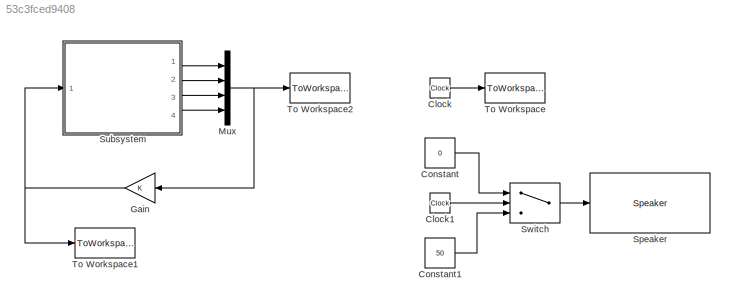
MODEL slx_53c3fced9408
KIND model
BLOCK [Clock] Clock
BLOCK [Clock] Clock1
BLOCK [Constant] Constant
  Value = 0
BLOCK [Constant] Constant1
  Value = 50
BLOCK [Gain] Gain
  Gain = K
  Multiplication = Matrix(K*u)
  OutDataTypeStr = Inherit: Inherit via internal rule
  ParamDataTypeStr = Inherit: Inherit via internal rule
  SaturateOnIntegerOverflow = off
BLOCK [Mux] Mux
  DisplayOption = bar
  Ports = [4, 1]
BLOCK [Reference] Speaker  REF=legoev3lib/Speaker
  Ports = [1]
  SourceBlock = legoev3lib/Speaker
  SourceType = LEGO MINDSTORMS EV3 Speaker
  sinputMode = Volume only
  sspeakerDuration = 1000
  sspeakerFreq = 100
  sspeakerVolume = 50
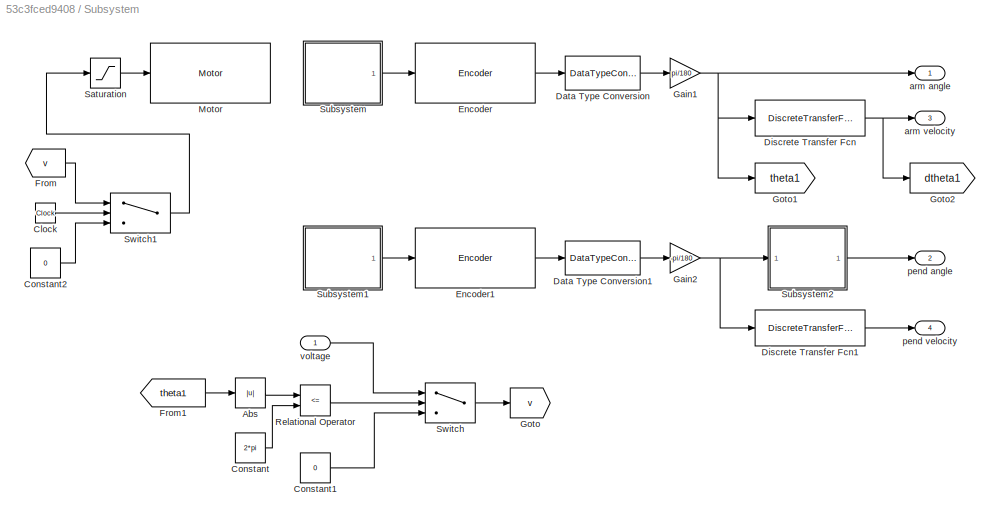
BLOCK [SubSystem] Subsystem
  Ports = [1, 4]
  RequestExecContextInheritance = off
BLOCK [Abs] Subsystem/Abs
BLOCK [Clock] Subsystem/Clock
BLOCK [Constant] Subsystem/Constant
  Value = 2*pi
BLOCK [Constant] Subsystem/Constant1
  Value = 0
BLOCK [Constant] Subsystem/Constant2
  Value = 0
BLOCK [DataTypeConversion] Subsystem/Data Type Conversion
  OutDataTypeStr = double
  RndMeth = Simplest
  SaturateOnIntegerOverflow = off
BLOCK [DataTypeConversion] Subsystem/Data Type Conversion1
  OutDataTypeStr = double
  RndMeth = Simplest
  SaturateOnIntegerOverflow = off
BLOCK [DiscreteTransferFcn] Subsystem/Discrete Transfer Fcn
  Denominator = [(h+2*Tf1) h-2*Tf1]
  InputPortMap = u0
  Numerator = [2 -2]
  Ports = [1, 1]
  SampleTime = h
BLOCK [DiscreteTransferFcn] Subsystem/Discrete Transfer Fcn1
  Denominator = [(h+2*Tf2) h-2*Tf2]
  InputPortMap = u0
  Numerator = [2 -2]
  Ports = [1, 1]
  SampleTime = h
BLOCK [Reference] Subsystem/Encoder  REF=legoev3lib/Encoder
  Ports = [1, 1]
  SourceBlock = legoev3lib/Encoder
  SourceType = LEGO MINDSTORMS EV3 Encoder
  opMode = Reset by external signal
  portNumber = A
  sampleTime = h
BLOCK [Reference] Subsystem/Encoder1  REF=legoev3lib/Encoder
  Ports = [1, 1]
  SourceBlock = legoev3lib/Encoder
  SourceType = LEGO MINDSTORMS EV3 Encoder
  opMode = Reset by external signal
  portNumber = C
  sampleTime = h
BLOCK [From] Subsystem/From
  GotoTag = v
BLOCK [From] Subsystem/From1
  GotoTag = theta1
BLOCK [Gain] Subsystem/Gain1
  Gain = pi/180
  OutDataTypeStr = Inherit: Inherit via internal rule
  ParamDataTypeStr = Inherit: Inherit via internal rule
  SaturateOnIntegerOverflow = off
BLOCK [Gain] Subsystem/Gain2
  Gain = -pi/180
  OutDataTypeStr = Inherit: Inherit via internal rule
  ParamDataTypeStr = Inherit: Inherit via internal rule
  SaturateOnIntegerOverflow = off
BLOCK [Goto] Subsystem/Goto
  GotoTag = v
BLOCK [Goto] Subsystem/Goto1
  GotoTag = theta1
BLOCK [Goto] Subsystem/Goto2
  GotoTag = dtheta1
BLOCK [Reference] Subsystem/Motor  REF=legoev3lib/Motor
  Ports = [1]
  SourceBlock = legoev3lib/Motor
  SourceType = LEGO MINDSTORMS EV3 Motor
  sportNumber = A
  sstopAction = Brake
BLOCK [RelationalOperator] Subsystem/Relational Operator
  Operator = <=
  Ports = [2, 1]
BLOCK [Saturate] Subsystem/Saturation
  InputPortMap = u0
  LowerLimit = -100
  Ports = [1, 1]
  UpperLimit = 100
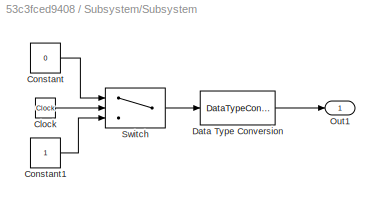
BLOCK [SubSystem] Subsystem/Subsystem
  Ports = [0, 1]
  RequestExecContextInheritance = off
BLOCK [Clock] Subsystem/Subsystem/Clock
BLOCK [Constant] Subsystem/Subsystem/Constant
  Value = 0
BLOCK [Constant] Subsystem/Subsystem/Constant1
BLOCK [DataTypeConversion] Subsystem/Subsystem/Data Type Conversion
  OutDataTypeStr = int8
  RndMeth = Simplest
  SaturateOnIntegerOverflow = off
BLOCK [Outport] Subsystem/Subsystem/Out1
  IconDisplay = Port number
BLOCK [Switch] Subsystem/Subsystem/Switch
  Criteria = u2 > Threshold
  InputSameDT = off
  SaturateOnIntegerOverflow = off
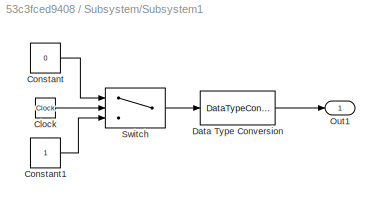
BLOCK [SubSystem] Subsystem/Subsystem1
  Ports = [0, 1]
  RequestExecContextInheritance = off
BLOCK [Clock] Subsystem/Subsystem1/Clock
BLOCK [Constant] Subsystem/Subsystem1/Constant
  Value = 0
BLOCK [Constant] Subsystem/Subsystem1/Constant1
BLOCK [DataTypeConversion] Subsystem/Subsystem1/Data Type Conversion
  OutDataTypeStr = int8
  RndMeth = Simplest
  SaturateOnIntegerOverflow = off
BLOCK [Outport] Subsystem/Subsystem1/Out1
  IconDisplay = Port number
BLOCK [Switch] Subsystem/Subsystem1/Switch
  Criteria = u2 > Threshold
  InputSameDT = off
  SaturateOnIntegerOverflow = off
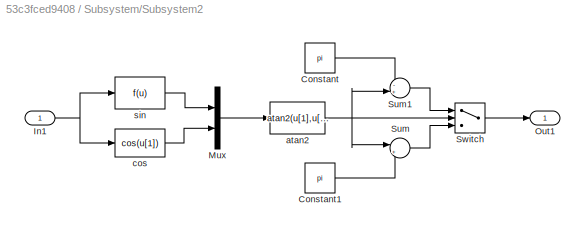
BLOCK [SubSystem] Subsystem/Subsystem2
  Ports = [1, 1]
  RequestExecContextInheritance = off
BLOCK [Constant] Subsystem/Subsystem2/Constant
  Value = pi
BLOCK [Constant] Subsystem/Subsystem2/Constant1
  Value = pi
BLOCK [Inport] Subsystem/Subsystem2/In1
  IconDisplay = Port number
BLOCK [Mux] Subsystem/Subsystem2/Mux
  DisplayOption = bar
  Inputs = 2
  Ports = [2, 1]
BLOCK [Outport] Subsystem/Subsystem2/Out1
  IconDisplay = Port number
BLOCK [Sum] Subsystem/Subsystem2/Sum
  IconShape = round
  Inputs = |++
  Ports = [2, 1]
BLOCK [Sum] Subsystem/Subsystem2/Sum1
  IconShape = round
  Inputs = -+|
  Ports = [2, 1]
BLOCK [Switch] Subsystem/Subsystem2/Switch
BLOCK [Fcn] Subsystem/Subsystem2/atan2
  Expr = atan2(u[1],u[2])
BLOCK [Fcn] Subsystem/Subsystem2/cos
  Expr = cos(u[1])
BLOCK [Fcn] Subsystem/Subsystem2/sin
BLOCK [Switch] Subsystem/Switch
  Criteria = u2 ~= 0
  InputSameDT = off
  SaturateOnIntegerOverflow = off
BLOCK [Switch] Subsystem/Switch1
  InputSameDT = off
  SaturateOnIntegerOverflow = off
  Threshold = 10
BLOCK [Outport] Subsystem/arm angle
  IconDisplay = Port number
BLOCK [Outport] Subsystem/arm velocity
  IconDisplay = Port number
  Port = 3
BLOCK [Outport] Subsystem/pend angle
  IconDisplay = Port number
  Port = 2
BLOCK [Outport] Subsystem/pend velocity
  IconDisplay = Port number
  Port = 4
BLOCK [Inport] Subsystem/voltage
  IconDisplay = Port number
BLOCK [Switch] Switch
  InputSameDT = off
  SaturateOnIntegerOverflow = off
  Threshold = 1
BLOCK [ToWorkspace] To Workspace
  MaxDataPoints = inf
  Ports = [1]
  SampleTime = -1
  VariableName = t
BLOCK [ToWorkspace] To Workspace1
  MaxDataPoints = inf
  Ports = [1]
  SampleTime = -1
  VariableName = u
BLOCK [ToWorkspace] To Workspace2
  MaxDataPoints = inf
  Ports = [1]
  SampleTime = -1
  VariableName = x
LINE Clock1:1 -> Switch:2
LINE Clock:1 -> To Workspace:1
LINE Constant1:1 -> Switch:3
LINE Constant:1 -> Switch:1
NET Gain:1 -> Subsystem:1, To Workspace1:1
NET Mux:1 -> Gain:1, To Workspace2:1
LINE Subsystem/Abs:1 -> Subsystem/Relational Operator:1
LINE Subsystem/Clock:1 -> Subsystem/Switch1:2
LINE Subsystem/Constant1:1 -> Subsystem/Switch:3
LINE Subsystem/Constant2:1 -> Subsystem/Switch1:3
LINE Subsystem/Constant:1 -> Subsystem/Relational Operator:2
LINE Subsystem/Data Type Conversion1:1 -> Subsystem/Gain2:1
LINE Subsystem/Data Type Conversion:1 -> Subsystem/Gain1:1
LINE Subsystem/Discrete Transfer Fcn1:1 -> Subsystem/pend velocity:1
NET Subsystem/Discrete Transfer Fcn:1 -> Subsystem/Goto2:1, Subsystem/arm velocity:1
LINE Subsystem/Encoder1:1 -> Subsystem/Data Type Conversion1:1
LINE Subsystem/Encoder:1 -> Subsystem/Data Type Conversion:1
LINE Subsystem/From1:1 -> Subsystem/Abs:1
LINE Subsystem/From:1 -> Subsystem/Switch1:1
NET Subsystem/Gain1:1 -> Subsystem/Discrete Transfer Fcn:1, Subsystem/Goto1:1, Subsystem/arm angle:1
NET Subsystem/Gain2:1 -> Subsystem/Discrete Transfer Fcn1:1, Subsystem/Subsystem2:1
LINE Subsystem/Relational Operator:1 -> Subsystem/Switch:2
LINE Subsystem/Saturation:1 -> Subsystem/Motor:1
LINE Subsystem/Subsystem/Clock:1 -> Subsystem/Subsystem/Switch:2
LINE Subsystem/Subsystem/Constant1:1 -> Subsystem/Subsystem/Switch:3
LINE Subsystem/Subsystem/Constant:1 -> Subsystem/Subsystem/Switch:1
LINE Subsystem/Subsystem/Data Type Conversion:1 -> Subsystem/Subsystem/Out1:1
LINE Subsystem/Subsystem/Switch:1 -> Subsystem/Subsystem/Data Type Conversion:1
LINE Subsystem/Subsystem1/Clock:1 -> Subsystem/Subsystem1/Switch:2
LINE Subsystem/Subsystem1/Constant1:1 -> Subsystem/Subsystem1/Switch:3
LINE Subsystem/Subsystem1/Constant:1 -> Subsystem/Subsystem1/Switch:1
LINE Subsystem/Subsystem1/Data Type Conversion:1 -> Subsystem/Subsystem1/Out1:1
LINE Subsystem/Subsystem1/Switch:1 -> Subsystem/Subsystem1/Data Type Conversion:1
LINE Subsystem/Subsystem1:1 -> Subsystem/Encoder1:1
LINE Subsystem/Subsystem2/Constant1:1 -> Subsystem/Subsystem2/Sum:2
LINE Subsystem/Subsystem2/Constant:1 -> Subsystem/Subsystem2/Sum1:1
NET Subsystem/Subsystem2/In1:1 -> Subsystem/Subsystem2/cos:1, Subsystem/Subsystem2/sin:1
LINE Subsystem/Subsystem2/Mux:1 -> Subsystem/Subsystem2/atan2:1
LINE Subsystem/Subsystem2/Sum1:1 -> Subsystem/Subsystem2/Switch:1
LINE Subsystem/Subsystem2/Sum:1 -> Subsystem/Subsystem2/Switch:3
LINE Subsystem/Subsystem2/Switch:1 -> Subsystem/Subsystem2/Out1:1
NET Subsystem/Subsystem2/atan2:1 -> Subsystem/Subsystem2/Sum1:2, Subsystem/Subsystem2/Sum:1, Subsystem/Subsystem2/Switch:2
LINE Subsystem/Subsystem2/cos:1 -> Subsystem/Subsystem2/Mux:2
LINE Subsystem/Subsystem2/sin:1 -> Subsystem/Subsystem2/Mux:1
LINE Subsystem/Subsystem2:1 -> Subsystem/pend angle:1
LINE Subsystem/Subsystem:1 -> Subsystem/Encoder:1
LINE Subsystem/Switch1:1 -> Subsystem/Saturation:1
LINE Subsystem/Switch:1 -> Subsystem/Goto:1
LINE Subsystem/voltage:1 -> Subsystem/Switch:1
LINE Subsystem:1 -> Mux:1
LINE Subsystem:2 -> Mux:2
LINE Subsystem:3 -> Mux:3
LINE Subsystem:4 -> Mux:4
LINE Switch:1 -> Speaker:1
note: NET lines group one-source signal fan-out (src -> all destinations, sorted); 1:1 wires keep LINE
